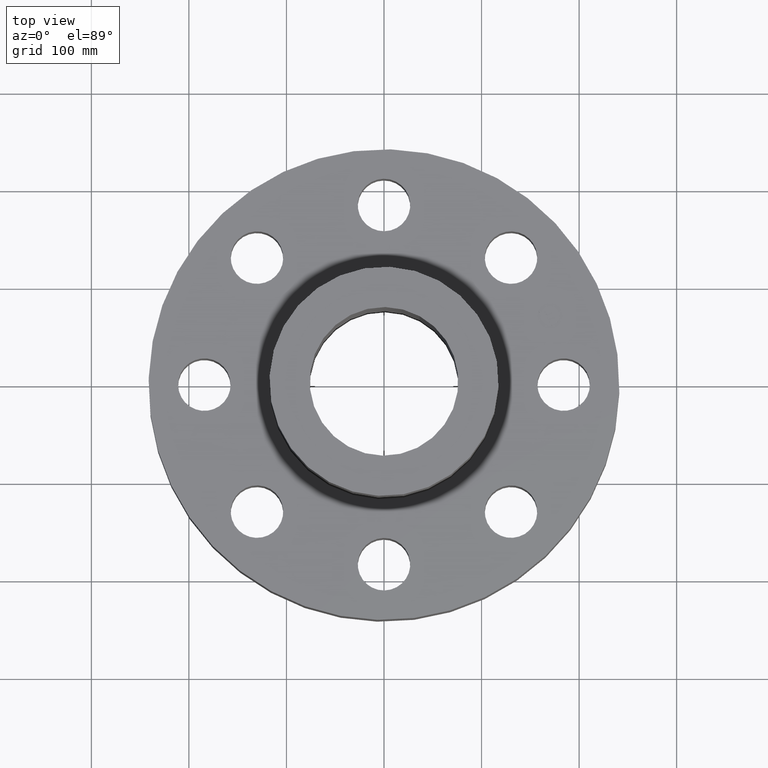
[diagram: clean part render]
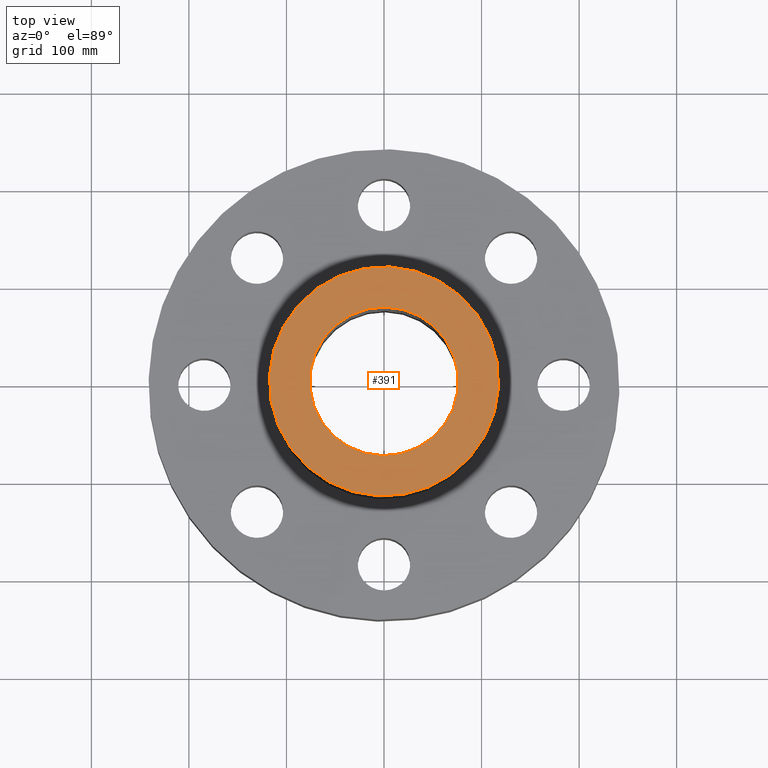
[diagram: same view with one face highlighted and labeled with its STEP entity id]
A machine part, top view. The second image highlights one B-rep face of the part: STEP entity #391.
In plain terms, the highlighted planar face has unit normal (0, 0, -1).
Its self-contained STEP definition (entity closure, byte-faithful):
#330=AXIS2_PLACEMENT_3D('Circle Axis2P3D',#328,#329,$) ;
#354=AXIS2_PLACEMENT_3D('Circle Axis2P3D',#352,#353,$) ;
#367=AXIS2_PLACEMENT_3D('Plane Axis2P3D',#364,#365,#366) ;
#375=AXIS2_PLACEMENT_3D('Circle Axis2P3D',#373,#374,$) ;
#384=AXIS2_PLACEMENT_3D('Circle Axis2P3D',#382,#383,$) ;
#325=CARTESIAN_POINT('Vertex',(2.21734311605,4.05881934876,11.75)) ;
#328=CARTESIAN_POINT('Axis2P3D Location',(0.,0.,11.75)) ;
#332=CARTESIAN_POINT('Vertex',(-2.21734311605,-4.05881934876,11.75)) ;
#352=CARTESIAN_POINT('Axis2P3D Location',(0.,0.,11.75)) ;
#364=CARTESIAN_POINT('Axis2P3D Location',(0.,4.62500000002,11.75)) ;
#373=CARTESIAN_POINT('Axis2P3D Location',(0.,0.,11.75)) ;
#377=CARTESIAN_POINT('Vertex',(-1.43827661582,-2.63274768568,11.75)) ;
#379=CARTESIAN_POINT('Vertex',(1.43827661582,2.63274768568,11.75)) ;
#382=CARTESIAN_POINT('Axis2P3D Location',(0.,0.,11.75)) ;
#329=DIRECTION('Axis2P3D Direction',(0.,0.,-0.0393700787402)) ;
#353=DIRECTION('Axis2P3D Direction',(0.,0.,-0.0393700787402)) ;
#365=DIRECTION('Axis2P3D Direction',(0.,0.,-0.0393700787402)) ;
#366=DIRECTION('Axis2P3D XDirection',(0.0393700787402,0.,0.)) ;
#374=DIRECTION('Axis2P3D Direction',(0.,0.,-0.0393700787402)) ;
#383=DIRECTION('Axis2P3D Direction',(0.,0.,-0.0393700787402)) ;
#370=ORIENTED_EDGE('',*,*,#334,.F.) ;
#371=ORIENTED_EDGE('',*,*,#356,.F.) ;
#388=ORIENTED_EDGE('',*,*,#381,.T.) ;
#389=ORIENTED_EDGE('',*,*,#386,.T.) ;
#390=FACE_BOUND('',#387,.T.) ;
#391=ADVANCED_FACE('PartBody',(#372,#390),#368,.F.) ;
#331=CIRCLE('generated circle',#330,4.62500000002) ;
#355=CIRCLE('generated circle',#354,4.62500000002) ;
#376=CIRCLE('generated circle',#375,3.00000000001) ;
#385=CIRCLE('generated circle',#384,3.00000000001) ;
#334=EDGE_CURVE('',#326,#333,#331,.T.) ;
#356=EDGE_CURVE('',#333,#326,#355,.T.) ;
#381=EDGE_CURVE('',#378,#380,#376,.T.) ;
#386=EDGE_CURVE('',#380,#378,#385,.T.) ;
#369=EDGE_LOOP('',(#370,#371)) ;
#387=EDGE_LOOP('',(#388,#389)) ;
#372=FACE_OUTER_BOUND('',#369,.T.) ;
#368=PLANE('',#367) ;
#326=VERTEX_POINT('',#325) ;
#333=VERTEX_POINT('',#332) ;
#378=VERTEX_POINT('',#377) ;
#380=VERTEX_POINT('',#379) ;